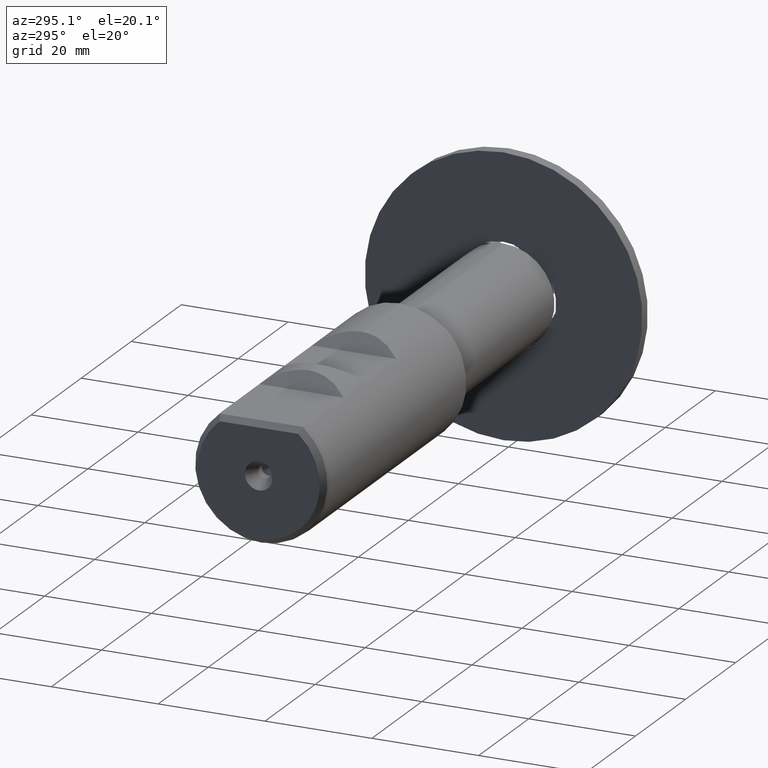
[diagram: clean part render]
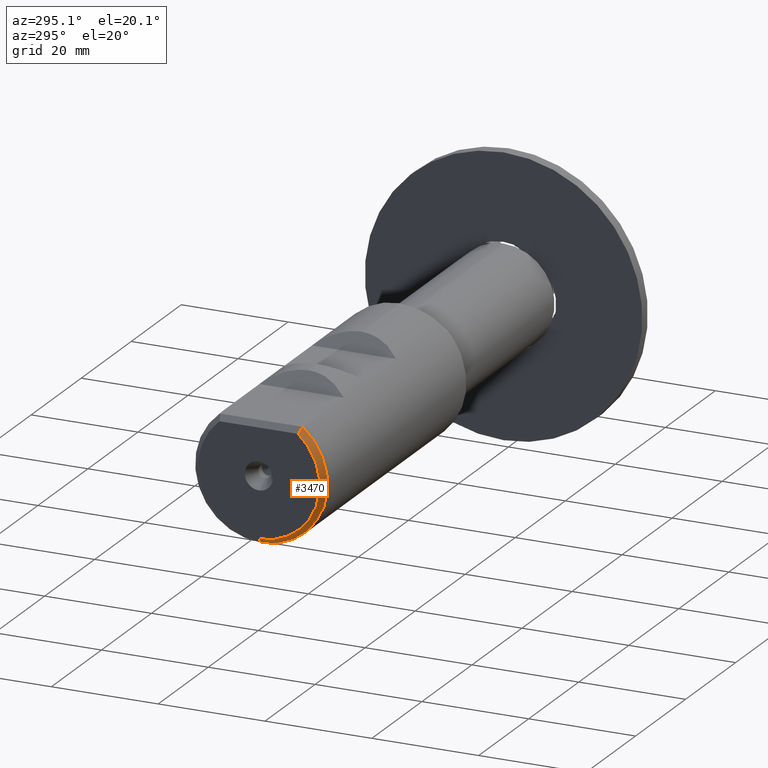
[diagram: same view with one face highlighted and labeled with its STEP entity id]
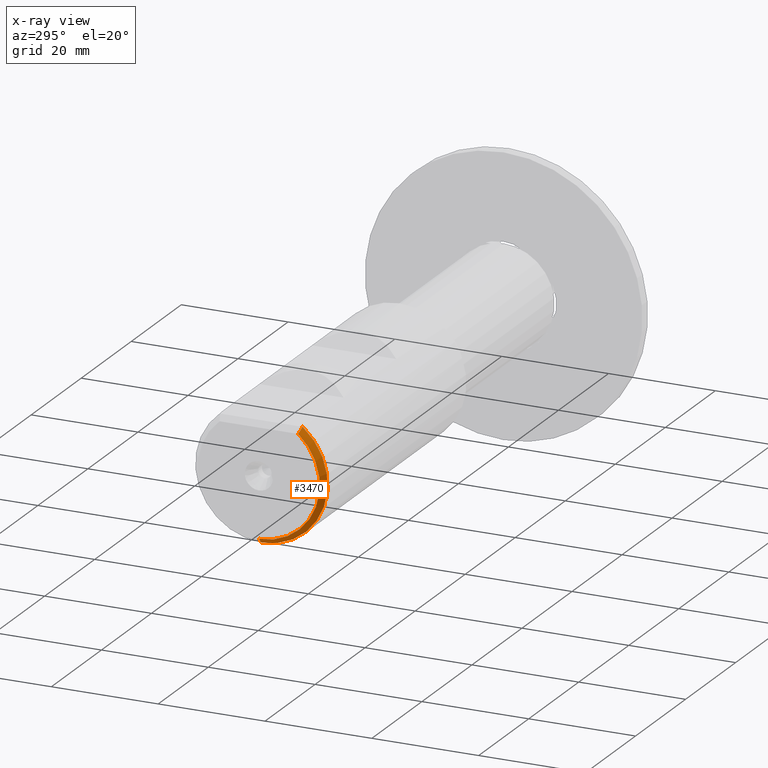
[diagram: x-ray of the same camera — body ghosted, the highlighted face saturated]
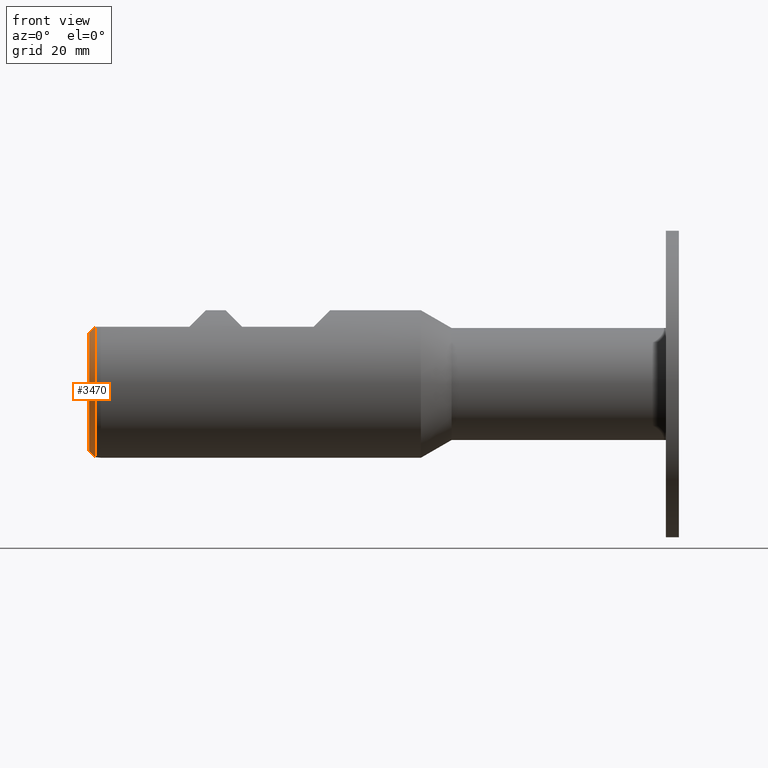
[diagram: same view with one face highlighted and labeled with its STEP entity id]
A machine part, auxiliary view. The second image highlights one B-rep face of the part: STEP entity #3470.
The next image is the same camera in x-ray: the body ghosted, the highlighted face saturated — about 0% of this face is hidden behind the body in this view.
A second angle (front view) of the same face is appended — the face is thin or edge-on in the first view.
In plain terms, the highlighted conical surface has half-angle 45 deg.
Its self-contained STEP definition (entity closure, byte-faithful):
#254 = DIRECTION ( 'NONE',  ( 1.000000000000000000, -0.0000000000000000000, -0.0000000000000000000 ) ) ;
#455 = VERTEX_POINT ( 'NONE', #2390 ) ;
#467 = DIRECTION ( 'NONE',  ( 1.000000000000000000, -0.0000000000000000000, -0.0000000000000000000 ) ) ;
#496 = EDGE_CURVE ( 'NONE', #4083, #3334, #2706, .T. ) ;
#937 = CARTESIAN_POINT ( 'NONE',  ( -98.74972633000000144, 0.0000000000000000000, 0.0000000000000000000 ) ) ;
#1026 = AXIS2_PLACEMENT_3D ( 'NONE', #2457, #467, #2438 ) ;
#1119 = EDGE_CURVE ( 'NONE', #4044, #455, #1131, .T. ) ;
#1131 = CIRCLE ( 'NONE', #3210, 11.39999999999998792 ) ;
#1551 = CONICAL_SURFACE ( 'NONE', #3647, 12.39999999999997726, 0.7853981633974422838 ) ;
#1659 = ORIENTED_EDGE ( 'NONE', *, *, #4151, .T. ) ;
#1667 = CARTESIAN_POINT ( 'NONE',  ( -99.74972633000000144, -7.366817494685191647, 8.699999999999993960 ) ) ;
#1669 = B_SPLINE_CURVE_WITH_KNOTS ( 'NONE', 3,
 ( #1667, #1700, #3401, #2689 ),
 .UNSPECIFIED., .F., .F.,
 ( 4, 4 ),
 ( 2.921820456633550900E-07, 0.001459070445189928570 ),
 .UNSPECIFIED. ) ;
#1695 = ORIENTED_EDGE ( 'NONE', *, *, #1119, .T. ) ;
#1700 = CARTESIAN_POINT ( 'NONE',  ( -99.41688487542465680, -7.488806661377827467, 9.032841454575333273 ) ) ;
#1741 = DIRECTION ( 'NONE',  ( 1.000000000000000000, -0.0000000000000000000, -0.0000000000000000000 ) ) ;
#1881 = FACE_OUTER_BOUND ( 'NONE', #2047, .T. ) ;
#1934 = ORIENTED_EDGE ( 'NONE', *, *, #496, .F. ) ;
#1958 = CARTESIAN_POINT ( 'NONE',  ( -99.74972633000000144, -7.366817494685191647, 8.699999999999993960 ) ) ;
#2035 = DIRECTION ( 'NONE',  ( 0.7071067811865517916, 0.0000000000000000000, -0.7071067811865432429 ) ) ;
#2047 = EDGE_LOOP ( 'NONE', ( #1695, #1659, #1934, #2572 ) ) ;
#2390 = CARTESIAN_POINT ( 'NONE',  ( -99.74972633000000144, 0.0000000000000000000, -11.39999999999998792 ) ) ;
#2438 = DIRECTION ( 'NONE',  ( 0.0000000000000000000, 0.0000000000000000000, -1.000000000000000000 ) ) ;
#2457 = CARTESIAN_POINT ( 'NONE',  ( -98.74972633000000144, 0.0000000000000000000, 0.0000000000000000000 ) ) ;
#2572 = ORIENTED_EDGE ( 'NONE', *, *, #2870, .F. ) ;
#2689 = CARTESIAN_POINT ( 'NONE',  ( -98.74972633000000144, -7.724635913750210747, 9.699999999999997513 ) ) ;
#2706 = CIRCLE ( 'NONE', #1026, 12.39999999999997726 ) ;
#2804 = CARTESIAN_POINT ( 'NONE',  ( -99.74972633000000144, 0.0000000000000000000, 0.0000000000000000000 ) ) ;
#2870 = EDGE_CURVE ( 'NONE', #4044, #4083, #1669, .T. ) ;
#2882 = VECTOR ( 'NONE', #2035, 1000.000000000000000 ) ;
#2987 = DIRECTION ( 'NONE',  ( 0.0000000000000000000, 0.0000000000000000000, -1.000000000000000000 ) ) ;
#3076 = CARTESIAN_POINT ( 'NONE',  ( -98.74972633000000144, 0.0000000000000000000, -12.39999999999997726 ) ) ;
#3093 = LINE ( 'NONE', #3076, #2882 ) ;
#3156 = DIRECTION ( 'NONE',  ( 0.0000000000000000000, 0.0000000000000000000, -1.000000000000000000 ) ) ;
#3210 = AXIS2_PLACEMENT_3D ( 'NONE', #2804, #1741, #3156 ) ;
#3334 = VERTEX_POINT ( 'NONE', #3628 ) ;
#3401 = CARTESIAN_POINT ( 'NONE',  ( -99.08351972915659189, -7.607964760858910047, 9.366206600843396402 ) ) ;
#3470 = ADVANCED_FACE ( 'NONE', ( #1881 ), #1551, .T. ) ;
#3628 = CARTESIAN_POINT ( 'NONE',  ( -98.74972633000000144, 0.0000000000000000000, -12.39999999999997726 ) ) ;
#3647 = AXIS2_PLACEMENT_3D ( 'NONE', #937, #254, #2987 ) ;
#3716 = CARTESIAN_POINT ( 'NONE',  ( -98.74972633000000144, -7.724635913750210747, 9.699999999999997513 ) ) ;
#4044 = VERTEX_POINT ( 'NONE', #1958 ) ;
#4083 = VERTEX_POINT ( 'NONE', #3716 ) ;
#4151 = EDGE_CURVE ( 'NONE', #455, #3334, #3093, .T. ) ;